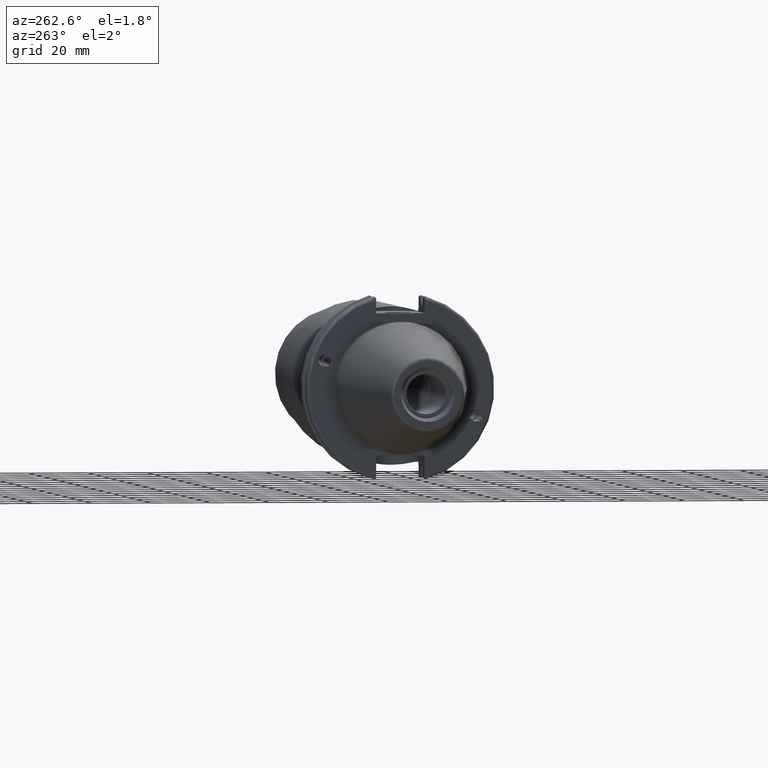
[diagram: clean part render]
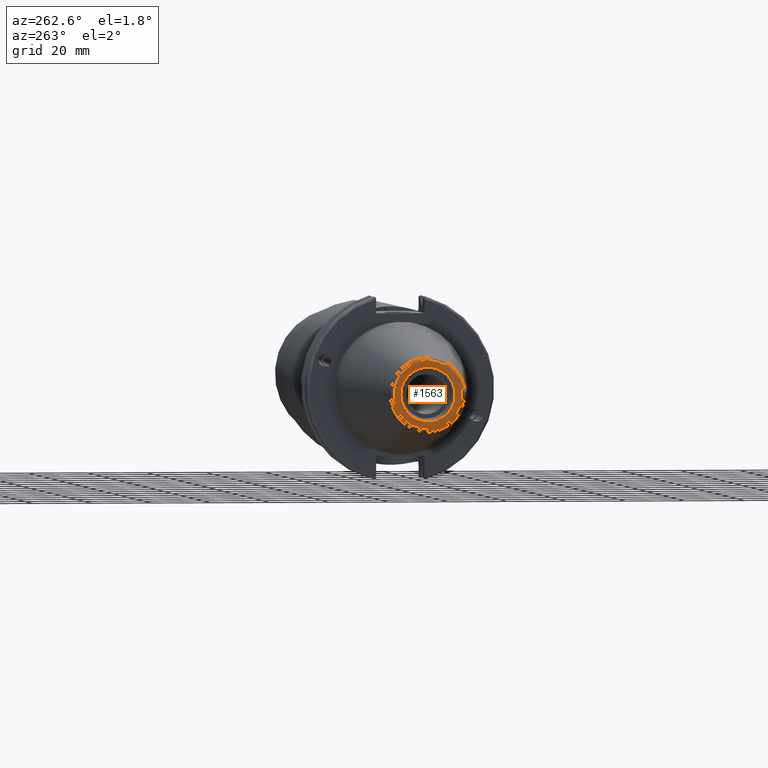
[diagram: same view with one face highlighted and labeled with its STEP entity id]
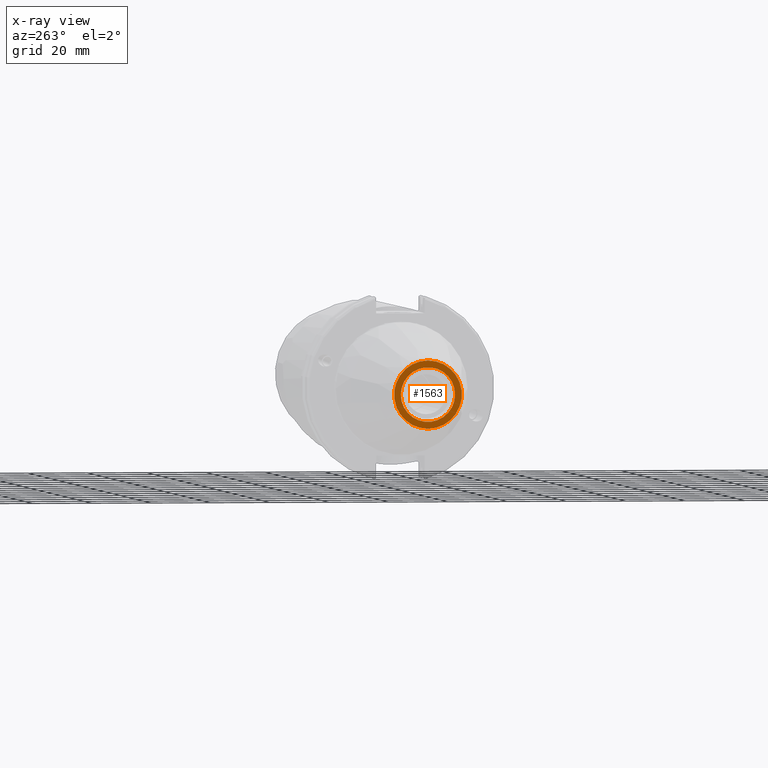
[diagram: x-ray of the same camera — body ghosted, the highlighted face saturated]
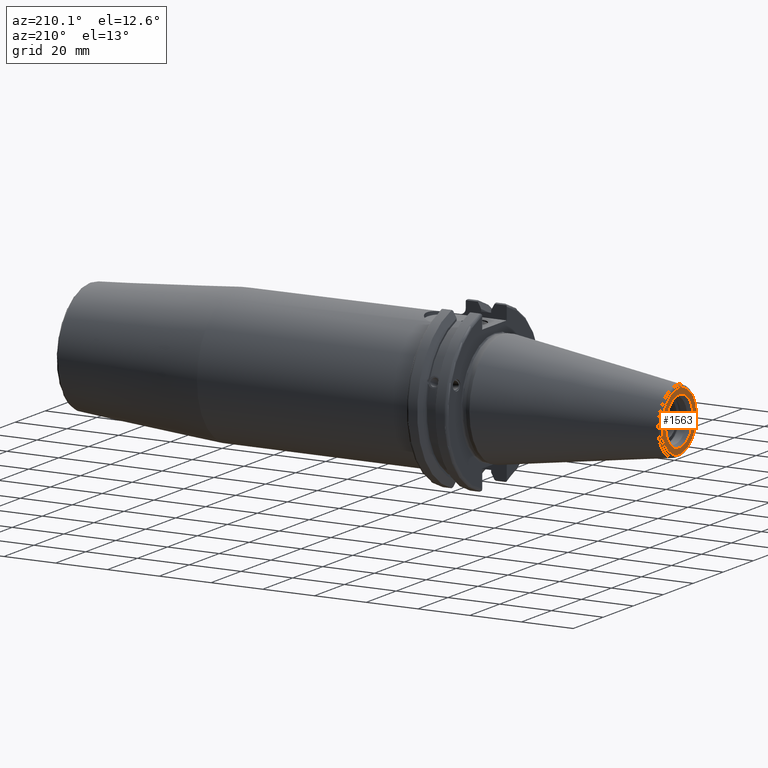
[diagram: same view with one face highlighted and labeled with its STEP entity id]
A machine part, auxiliary view. The second image highlights one B-rep face of the part: STEP entity #1563.
The next image is the same camera in x-ray: the body ghosted, the highlighted face saturated — about 0% of this face is hidden behind the body in this view.
A second angle (auxiliary view) of the same face is appended — the face is thin or edge-on in the first view.
In plain terms, the highlighted planar face has unit normal (-1, 0, 0).
Its self-contained STEP definition (entity closure, byte-faithful):
#61=FACE_BOUND('',#281,.T.);
#85=PLANE('',#1754);
#181=FACE_OUTER_BOUND('',#280,.T.);
#280=EDGE_LOOP('',(#1350));
#281=EDGE_LOOP('',(#1351));
#371=CIRCLE('',#1753,11.4071305970304);
#372=CIRCLE('',#1755,9.15);
#744=VERTEX_POINT('',#3043);
#745=VERTEX_POINT('',#3047);
#963=EDGE_CURVE('',#744,#744,#371,.T.);
#964=EDGE_CURVE('',#745,#745,#372,.T.);
#1350=ORIENTED_EDGE('',*,*,#963,.F.);
#1351=ORIENTED_EDGE('',*,*,#964,.T.);
#1563=ADVANCED_FACE('',(#181,#61),#85,.T.);
#1753=AXIS2_PLACEMENT_3D('',#3045,#2147,#2148);
#1754=AXIS2_PLACEMENT_3D('',#3046,#2149,#2150);
#1755=AXIS2_PLACEMENT_3D('',#3048,#2151,#2152);
#2147=DIRECTION('center_axis',(1.,0.,0.));
#2148=DIRECTION('ref_axis',(0.,-1.,1.83697019872103E-16));
#2149=DIRECTION('center_axis',(-1.,0.,0.));
#2150=DIRECTION('ref_axis',(0.,0.,1.));
#2151=DIRECTION('center_axis',(1.,0.,0.));
#2152=DIRECTION('ref_axis',(0.,0.,-1.));
#3043=CARTESIAN_POINT('',(-68.25,-1.39697059731091E-15,11.4071305970304));
#3045=CARTESIAN_POINT('Origin',(-68.25,0.,0.));
#3046=CARTESIAN_POINT('Origin',(-68.25,12.271875,0.));
#3047=CARTESIAN_POINT('',(-68.25,-9.15,-1.12055182121983E-15));
#3048=CARTESIAN_POINT('Origin',(-68.25,0.,0.));